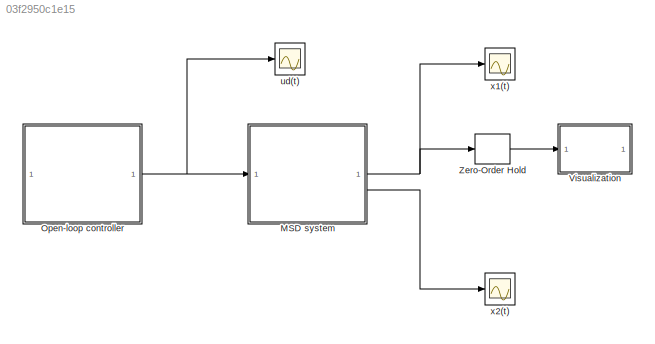
MODEL slx_03f2950c1e15
KIND model
CONFIG AbsTol = auto
CONFIG EnableMultiTasking = off
CONFIG FixedStep = 0.01
CONFIG MaxStep = auto
CONFIG MinStep = auto
CONFIG RelTol = 1e-3
CONFIG SampleTimeConstraint = Unconstrained
CONFIG SolverName = ode3
CONFIG StartTime = 0.0
CONFIG StopTime = 15
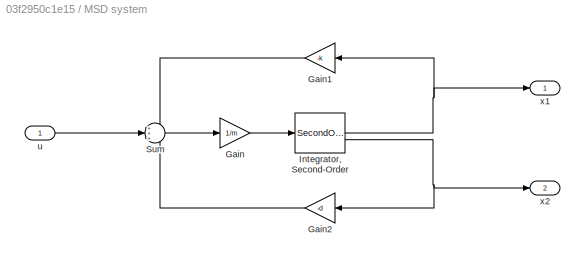
BLOCK [SubSystem] MSD system
BLOCK [Gain] MSD system/Gain
  Gain = 1/m
BLOCK [Gain] MSD system/Gain1
  Gain = -k
BLOCK [Gain] MSD system/Gain2
  Gain = -d
BLOCK [SecondOrderIntegrator] MSD system/Integrator, Second-Order
BLOCK [Sum] MSD system/Sum
  Inputs = +++
BLOCK [Inport] MSD system/u
BLOCK [Outport] MSD system/x1
BLOCK [Outport] MSD system/x2
  Port = 2
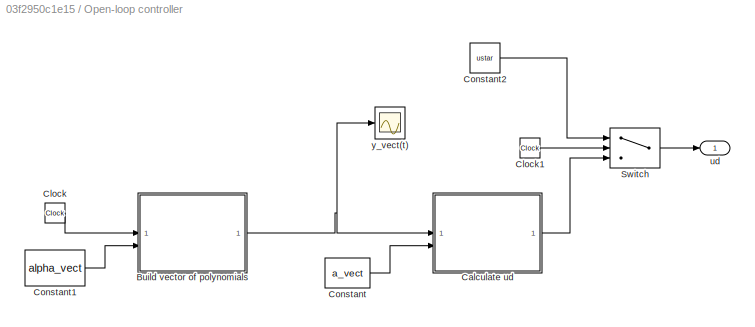
BLOCK [SubSystem] Open-loop controller
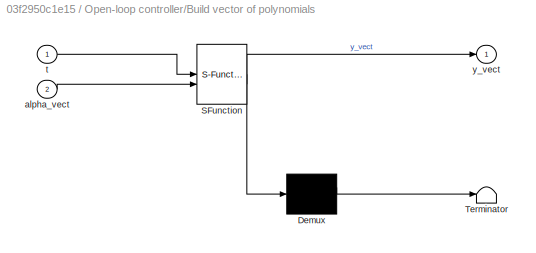
BLOCK [SubSystem] Open-loop controller/Build vector of polynomials
  ErrorFcn = Stateflow.Translate.translate
  PermitHierarchicalResolution = ExplicitOnly
  SFBlockType = MATLAB Function
  TreatAsAtomicUnit = on
BLOCK [Demux] Open-loop controller/Build vector of polynomials/ Demux 
  Outputs = 1
BLOCK [S-Function] Open-loop controller/Build vector of polynomials/ SFunction 
  EnableBusSupport = on
  FunctionName = sf_sfun
  PortCounts = [2 2]
  SFcnIsStateOwnerBlock = off
  SFunctionDeploymentMode = off
  Tag = Stateflow S-Function 1
BLOCK [Terminator] Open-loop controller/Build vector of polynomials/ Terminator 
BLOCK [Inport] Open-loop controller/Build vector of polynomials/alpha_vect
  Port = 2
BLOCK [Inport] Open-loop controller/Build vector of polynomials/t
BLOCK [Outport] Open-loop controller/Build vector of polynomials/y_vect
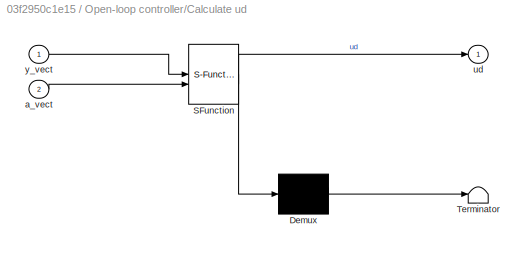
BLOCK [SubSystem] Open-loop controller/Calculate ud
  ErrorFcn = Stateflow.Translate.translate
  PermitHierarchicalResolution = ExplicitOnly
  SFBlockType = MATLAB Function
  TreatAsAtomicUnit = on
BLOCK [Demux] Open-loop controller/Calculate ud/ Demux 
  Outputs = 1
BLOCK [S-Function] Open-loop controller/Calculate ud/ SFunction 
  EnableBusSupport = on
  FunctionName = sf_sfun
  PortCounts = [2 2]
  SFcnIsStateOwnerBlock = off
  SFunctionDeploymentMode = off
  Tag = Stateflow S-Function 2
BLOCK [Terminator] Open-loop controller/Calculate ud/ Terminator 
BLOCK [Inport] Open-loop controller/Calculate ud/a_vect
  Port = 2
BLOCK [Outport] Open-loop controller/Calculate ud/ud
BLOCK [Inport] Open-loop controller/Calculate ud/y_vect
BLOCK [Clock] Open-loop controller/Clock
BLOCK [Clock] Open-loop controller/Clock1
BLOCK [Constant] Open-loop controller/Constant
  Value = a_vect
  VectorParams1D = off
BLOCK [Constant] Open-loop controller/Constant1
  Value = alpha_vect
  VectorParams1D = off
BLOCK [Constant] Open-loop controller/Constant2
  Value = ustar
BLOCK [Switch] Open-loop controller/Switch
  Criteria = u2 > Threshold
  InputSameDT = off
  SaturateOnIntegerOverflow = off
  Threshold = 10
BLOCK [Outport] Open-loop controller/ud
BLOCK [Scope] Open-loop controller/y_vect(t)
  Floating = off
  NumInputPorts = 1
  ScopeSpecificationString = Simulink.scopes.TimeScopeBlockCfg('CurrentConfiguration', extmgr.ConfigurationSet(extmgr.Configuration('Core','General UI',true),extmgr.Configuration('Core','Source UI',true),extmgr.Configuration('Sources','WiredSimulink',true,'DataLoggingVariableName','ScopeData5'),extmgr.Configuration('Visuals','Time Domain',true,'SerializedDisplays',{struct('MinYLimReal','-3.15625','MaxYLimReal','5.90625','YLab...<+1452ch>
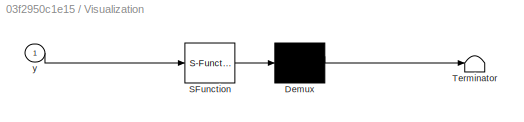
BLOCK [SubSystem] Visualization
  ErrorFcn = Stateflow.Translate.translate
  PermitHierarchicalResolution = ExplicitOnly
  SFBlockType = MATLAB Function
  TreatAsAtomicUnit = on
BLOCK [Demux] Visualization/ Demux 
  Outputs = 1
BLOCK [S-Function] Visualization/ SFunction 
  EnableBusSupport = on
  FunctionName = sf_sfun
  PortCounts = [1 1]
  SFcnIsStateOwnerBlock = off
  SFunctionDeploymentMode = off
  Tag = Stateflow S-Function 3
BLOCK [Terminator] Visualization/ Terminator 
BLOCK [Inport] Visualization/y
BLOCK [ZeroOrderHold] Zero-Order Hold
  SampleTime = 0.2
BLOCK [Scope] ud(t)
  Floating = off
  NumInputPorts = 1
  ScopeSpecificationString = Simulink.scopes.TimeScopeBlockCfg('CurrentConfiguration', extmgr.ConfigurationSet(extmgr.Configuration('Core','General UI',true),extmgr.Configuration('Core','Source UI',true),extmgr.Configuration('Sources','WiredSimulink',true,'DataLoggingVariableName','ScopeData2'),extmgr.Configuration('Visuals','Time Domain',true,'SerializedDisplays',{struct('MinYLimReal','0.12436','MaxYLimReal','27.76396','YLab...<+1411ch>
BLOCK [Scope] x1(t)
  Floating = off
  NumInputPorts = 1
  ScopeSpecificationString = Simulink.scopes.TimeScopeBlockCfg('CurrentConfiguration', extmgr.ConfigurationSet(extmgr.Configuration('Core','General UI',true),extmgr.Configuration('Core','Source UI',true),extmgr.Configuration('Sources','WiredSimulink',true),extmgr.Configuration('Visuals','Time Domain',true,'SerializedDisplays',{struct('MinYLimReal','-3.75026','MaxYLimReal','33.75237','YLabelReal','','MinYLimMag','0.00000','Max...<+1391ch>
BLOCK [Scope] x2(t)
  Floating = off
  NumInputPorts = 1
  ScopeSpecificationString = Simulink.scopes.TimeScopeBlockCfg('CurrentConfiguration', extmgr.ConfigurationSet(extmgr.Configuration('Core','General UI',true),extmgr.Configuration('Core','Source UI',true),extmgr.Configuration('Sources','WiredSimulink',true,'DataLoggingVariableName','ScopeData1'),extmgr.Configuration('Visuals','Time Domain',true,'SerializedDisplays',{struct('MinYLimReal','-0.0945','MaxYLimReal','0.84383','YLabe...<+1398ch>
LINE MSD system/Gain1:1 -> MSD system/Sum:1
LINE MSD system/Gain2:1 -> MSD system/Sum:3
LINE MSD system/Gain:1 -> MSD system/Integrator, Second-Order:1
NET MSD system/Integrator, Second-Order:1 -> MSD system/Gain1:1, MSD system/x1:1
NET MSD system/Integrator, Second-Order:2 -> MSD system/Gain2:1, MSD system/x2:1
LINE MSD system/Sum:1 -> MSD system/Gain:1
LINE MSD system/u:1 -> MSD system/Sum:2
NET MSD system:1 -> Zero-Order Hold:1, x1(t):1
LINE MSD system:2 -> x2(t):1
NET Open-loop controller/Build vector of polynomials:1 -> Open-loop controller/Calculate ud:1, Open-loop controller/y_vect(t):1
LINE Open-loop controller/Calculate ud:1 -> Open-loop controller/Switch:3
LINE Open-loop controller/Clock1:1 -> Open-loop controller/Switch:2
LINE Open-loop controller/Clock:1 -> Open-loop controller/Build vector of polynomials:1
LINE Open-loop controller/Constant1:1 -> Open-loop controller/Build vector of polynomials:2
LINE Open-loop controller/Constant2:1 -> Open-loop controller/Switch:1
LINE Open-loop controller/Constant:1 -> Open-loop controller/Calculate ud:2
LINE Open-loop controller/Switch:1 -> Open-loop controller/ud:1
NET Open-loop controller:1 -> MSD system:1, ud(t):1
LINE Zero-Order Hold:1 -> Visualization:1
note: NET lines group one-source signal fan-out (src -> all destinations, sorted); 1:1 wires keep LINE
CHART Open-loop controller/Calculate ud states=1 transitions=1
  STATE_LABEL 'eML_blk_kernel()'
  STATE_LABEL "SCRIPT:\nfunction ud = fcn(y_vect,a_vect)\n\nae_vect = [ a_vect ; 1 ];\n\n\n% computation open-loop input\nud = a_vect' * y_vect;\n"
CHART Visualization states=1 transitions=1
  STATE_LABEL 'eML_blk_kernel()'
  STATE_LABEL "SCRIPT:\nfunction fcn(y)\n\n\n% the mass\n    Xmass = [ 5 ; 5 ; -5 ; -5 ; 5 ] + y;\n    Ymass = [ -5 ; 5 ; 5 ; -5 ; -5]; \n\n% the spring\n    Xspring = [ 0 ; 4 ; 6 ; 10 ; 14 ; 18 ; 20 ; 24 ]/24*(y+24) - 29;\n    Yspring = [ 0 ; 0 ; 3 ; -3 ; 3 ; -3 ; 0 ; 0 ];\n\n% to be able to use 'fill' even though the function is not supported for code generation\n% see https://se.mathworks.com/help/simulink/slref/coder.ext...<+445ch>"
CHART Open-loop controller/Build vector of polynomials states=1 transitions=1
  STATE_LABEL 'eML_blk_kernel()'
  STATE_LABEL 'SCRIPT:\nfunction y_vect = fcn(t,alpha_vect)\n\nif length(alpha_vect) == 4\n    t_vect0 = [ 1 ; t ; t^2 ; t^3 ]; % vector of t values\n    t_vect1 = [ 0 ; 1 ; 2*t ; 3*t^2 ]; % derivative of t_vect0\n    t_vect2 = [ 0 ; 0 ; 2 ; 2*3*t ]; % derivative of t_vect1\nelseif length(alpha_vect) == 6\n    t_vect0 = [ 1 ; t ; t^2 ; t^3 ; t^4 ; t^5 ]; % vector of t values\n    t_vect1 = [ 0 ; 1 ; 2*t ; 3*t^2 ; 4*t^3 ;...<+579ch>'
CHART  states=0 transitions=0
CHART  states=0 transitions=0
CHART  states=0 transitions=0
